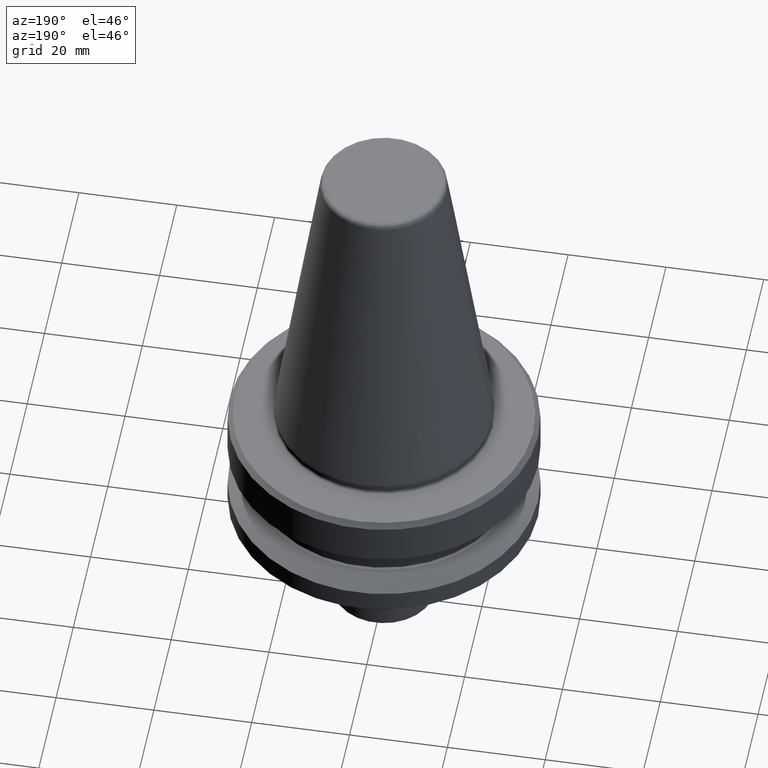
[diagram: clean part render]
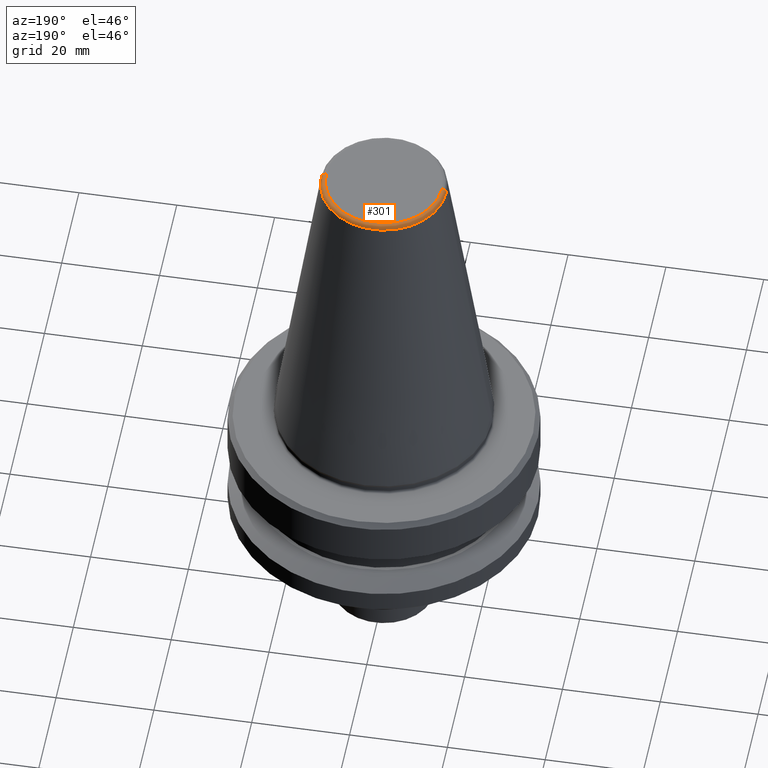
[diagram: same view with one face highlighted and labeled with its STEP entity id]
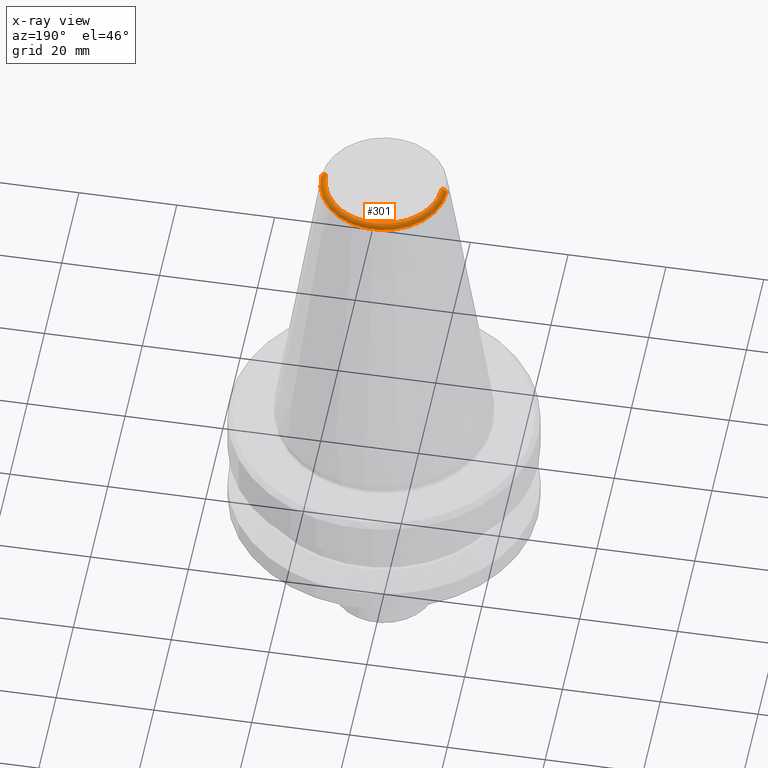
[diagram: x-ray of the same camera — body ghosted, the highlighted face saturated]
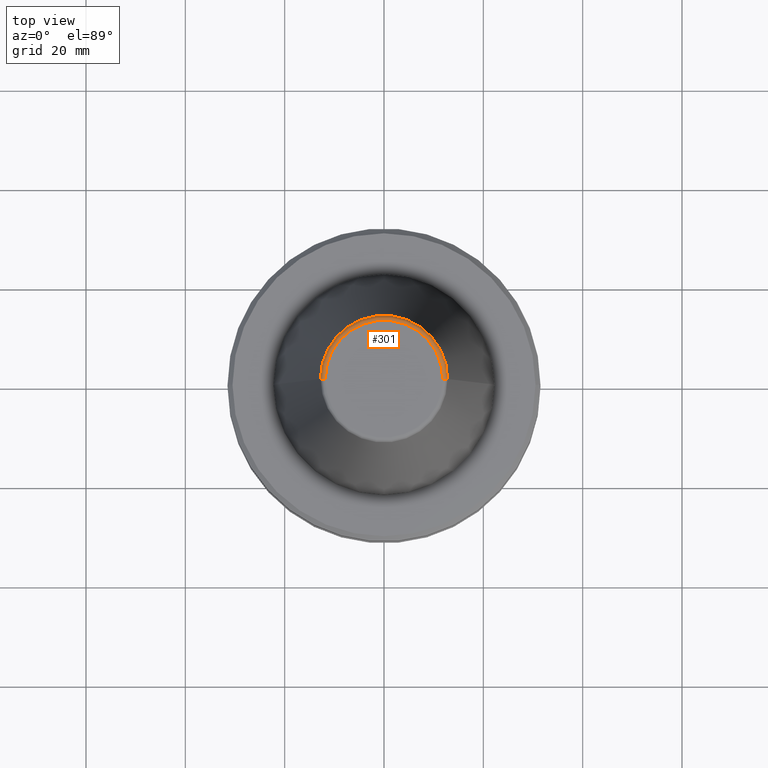
[diagram: same view with one face highlighted and labeled with its STEP entity id]
A machine part, auxiliary view. The second image highlights one B-rep face of the part: STEP entity #301.
The next image is the same camera in x-ray: the body ghosted, the highlighted face saturated — about 0% of this face is hidden behind the body in this view.
A second angle (top view) of the same face is appended — the face is thin or edge-on in the first view.
In plain terms, the highlighted toroidal blend (fillet) surface has major radius 11.8227 mm and minor (blend) radius 1 mm.
Its self-contained STEP definition (entity closure, byte-faithful):
#33 = EDGE_CURVE ( 'NONE', #527, #391, #167, .T. ) ;
#39 = EDGE_CURVE ( 'NONE', #713, #504, #892, .T. ) ;
#47 = TOROIDAL_SURFACE ( 'NONE', #541, 11.82266927716813000, 0.9999999999999696900 ) ;
#86 = DIRECTION ( 'NONE',  ( 1.000000000000000000, 0.0000000000000000000, 0.0000000000000000000 ) ) ;
#130 = CARTESIAN_POINT ( 'NONE',  ( -12.81220206925736900, 0.0000000000000000000, -0.8556918111122247000 ) ) ;
#133 = CIRCLE ( 'NONE', #779, 11.82266927716813000 ) ;
#136 = DIRECTION ( 'NONE',  ( 0.0000000000000000000, -1.000000000000000000, 0.0000000000000000000 ) ) ;
#167 = CIRCLE ( 'NONE', #638, 0.9999999999999696900 ) ;
#171 = CARTESIAN_POINT ( 'NONE',  ( -11.82266927716813000, 1.508450817090336800E-015, -4.440892098500626200E-013 ) ) ;
#191 = EDGE_CURVE ( 'NONE', #391, #504, #133, .T. ) ;
#214 = CARTESIAN_POINT ( 'NONE',  ( 11.82266927716813000, 0.0000000000000000000, -1.000000000000334000 ) ) ;
#220 = CARTESIAN_POINT ( 'NONE',  ( 11.82266927716813000, 0.0000000000000000000, -4.440892098500626200E-013 ) ) ;
#225 = AXIS2_PLACEMENT_3D ( 'NONE', #623, #302, #787 ) ;
#267 = EDGE_CURVE ( 'NONE', #527, #713, #698, .T. ) ;
#293 = CARTESIAN_POINT ( 'NONE',  ( 0.0000000000000000000, 0.0000000000000000000, -4.440892098500626200E-013 ) ) ;
#301 = ADVANCED_FACE ( 'NONE', ( #649 ), #47, .T. ) ;
#302 = DIRECTION ( 'NONE',  ( -0.0000000000000000000, -0.0000000000000000000, 1.000000000000000000 ) ) ;
#333 = ORIENTED_EDGE ( 'NONE', *, *, #39, .T. ) ;
#349 = ORIENTED_EDGE ( 'NONE', *, *, #267, .T. ) ;
#362 = CARTESIAN_POINT ( 'NONE',  ( -11.82266927716813000, 1.447859408766170200E-015, -1.000000000000334000 ) ) ;
#379 = DIRECTION ( 'NONE',  ( -0.0000000000000000000, -0.0000000000000000000, 1.000000000000000000 ) ) ;
#391 = VERTEX_POINT ( 'NONE', #220 ) ;
#450 = DIRECTION ( 'NONE',  ( -1.000000000000000000, 1.224646799147353000E-016, 0.0000000000000000000 ) ) ;
#453 = CARTESIAN_POINT ( 'NONE',  ( 12.81220206925736900, 2.145409868259749100E-015, -0.8556918111122247000 ) ) ;
#455 = DIRECTION ( 'NONE',  ( 1.000000000000000000, 0.0000000000000000000, 0.0000000000000000000 ) ) ;
#496 = DIRECTION ( 'NONE',  ( -0.0000000000000000000, -0.0000000000000000000, 1.000000000000000000 ) ) ;
#504 = VERTEX_POINT ( 'NONE', #171 ) ;
#527 = VERTEX_POINT ( 'NONE', #453 ) ;
#541 = AXIS2_PLACEMENT_3D ( 'NONE', #985, #496, #86 ) ;
#623 = CARTESIAN_POINT ( 'NONE',  ( 0.0000000000000000000, 0.0000000000000000000, -0.8556918111122247000 ) ) ;
#638 = AXIS2_PLACEMENT_3D ( 'NONE', #214, #136, #1034 ) ;
#649 = FACE_OUTER_BOUND ( 'NONE', #763, .T. ) ;
#698 = CIRCLE ( 'NONE', #225, 12.81220206925736900 ) ;
#713 = VERTEX_POINT ( 'NONE', #130 ) ;
#714 = ORIENTED_EDGE ( 'NONE', *, *, #191, .F. ) ;
#763 = EDGE_LOOP ( 'NONE', ( #349, #333, #714, #852 ) ) ;
#779 = AXIS2_PLACEMENT_3D ( 'NONE', #293, #379, #455 ) ;
#787 = DIRECTION ( 'NONE',  ( 1.000000000000000000, 0.0000000000000000000, 0.0000000000000000000 ) ) ;
#834 = DIRECTION ( 'NONE',  ( 1.224646799147353200E-016, 1.000000000000000000, 0.0000000000000000000 ) ) ;
#849 = AXIS2_PLACEMENT_3D ( 'NONE', #362, #834, #450 ) ;
#852 = ORIENTED_EDGE ( 'NONE', *, *, #33, .F. ) ;
#892 = CIRCLE ( 'NONE', #849, 0.9999999999999696900 ) ;
#985 = CARTESIAN_POINT ( 'NONE',  ( 0.0000000000000000000, 0.0000000000000000000, -1.000000000000334000 ) ) ;
#1034 = DIRECTION ( 'NONE',  ( 0.0000000000000000000, 0.0000000000000000000, -1.000000000000000000 ) ) ;